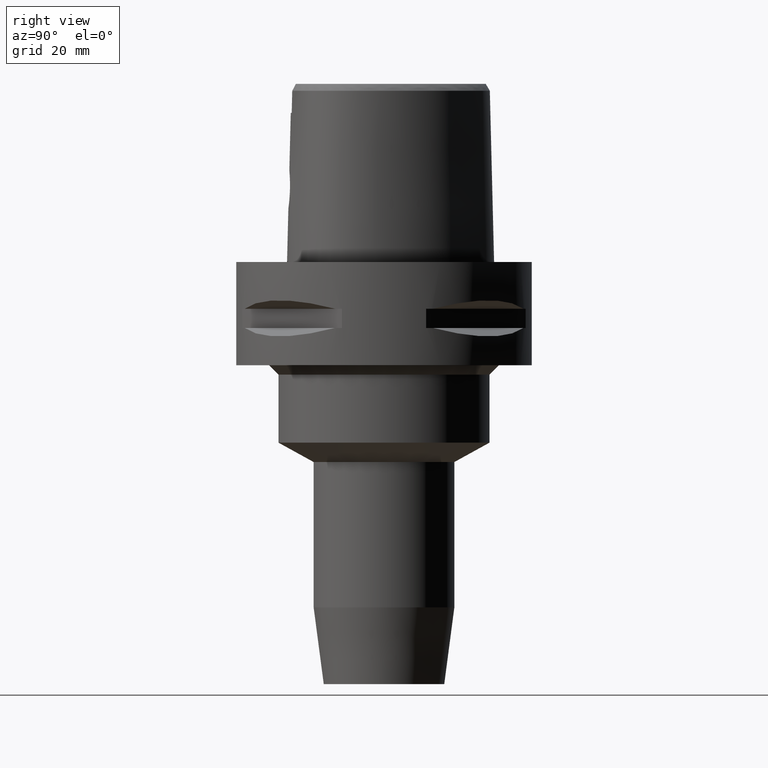
[diagram: clean part render]
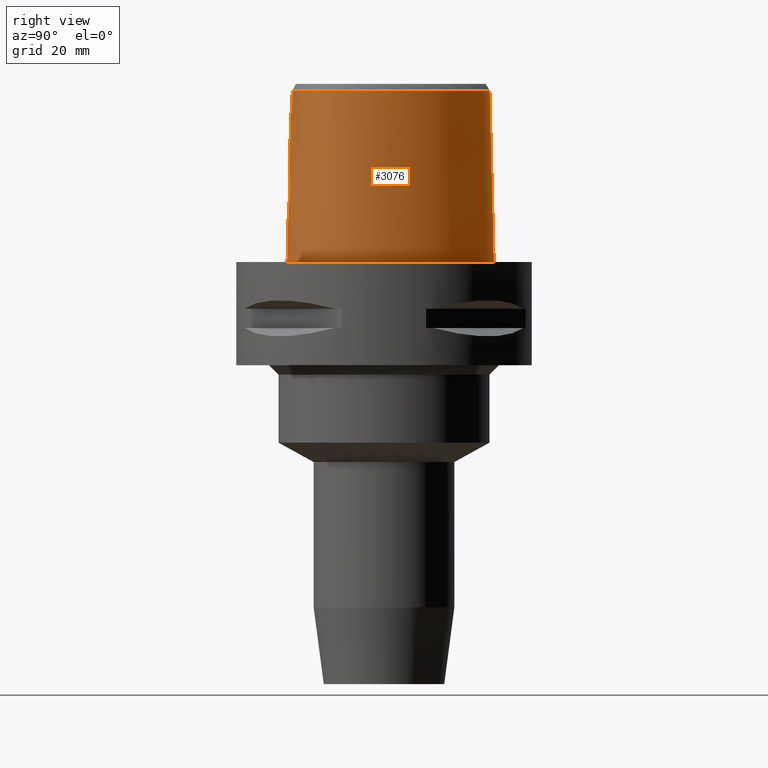
[diagram: same view with one face highlighted and labeled with its STEP entity id]
A machine part, right view. The second image highlights one B-rep face of the part: STEP entity #3076.
In plain terms, the highlighted face is a freeform B-spline surface patch.
Its self-contained STEP definition (entity closure, byte-faithful):
#136=CARTESIAN_POINT('',(3.637738219117E0,-1.956971420299E1,3.652185956444E1));
#146=CARTESIAN_POINT('',(-1.605084153856E-11,2.256201468012E1,
3.652186680744E1));
#147=CARTESIAN_POINT('',(3.781707213585E-1,2.256201468011E1,3.652186680744E1));
#148=CARTESIAN_POINT('',(1.134730585226E0,2.252498071705E1,3.652179120620E1));
#149=CARTESIAN_POINT('',(2.356063939295E0,2.234195482065E1,3.652187787897E1));
#150=CARTESIAN_POINT('',(3.623834858981E0,2.202086391621E1,3.652186376102E1));
#151=CARTESIAN_POINT('',(4.952045757185E0,2.154676064978E1,3.652187402960E1));
#152=CARTESIAN_POINT('',(6.329481850397E0,2.090709828528E1,3.652186529344E1));
#153=CARTESIAN_POINT('',(7.723199685630E0,2.010637444152E1,3.652186854430E1));
#154=CARTESIAN_POINT('',(9.105385253287E0,1.915869409911E1,3.652186637425E1));
#155=CARTESIAN_POINT('',(1.050375335652E1,1.803874747388E1,3.652186471326E1));
#156=CARTESIAN_POINT('',(1.194349139875E1,1.670689193153E1,3.652187410923E1));
#157=CARTESIAN_POINT('',(1.347317864387E1,1.506994472095E1,3.652184803073E1));
#158=CARTESIAN_POINT('',(1.501668659181E1,1.314288457789E1,3.652187441190E1));
#159=CARTESIAN_POINT('',(1.648740919358E1,1.098786647899E1,3.652186151903E1));
#160=CARTESIAN_POINT('',(1.781598819928E1,8.678010767453E0,3.652186754999E1));
#161=CARTESIAN_POINT('',(1.893654303366E1,6.324554453322E0,3.652185257979E1));
#162=CARTESIAN_POINT('',(1.980029771016E1,4.090529039235E0,3.652186292907E1));
#163=CARTESIAN_POINT('',(2.043911920172E1,1.993518421664E0,3.652186534459E1));
#164=CARTESIAN_POINT('',(2.087682742100E1,6.488729142452E-2,3.652187516659E1));
#165=CARTESIAN_POINT('',(2.114826763138E1,-1.722731342534E0,3.652186215059E1));
#166=CARTESIAN_POINT('',(2.127602838199E1,-3.404450108041E0,3.652186790573E1));
#167=CARTESIAN_POINT('',(2.126873709660E1,-5.016094142175E0,3.652187095036E1));
#168=CARTESIAN_POINT('',(2.113114608610E1,-6.519810638381E0,3.652186951853E1));
#169=CARTESIAN_POINT('',(2.087477494423E1,-7.906445118288E0,3.652186475025E1));
#170=CARTESIAN_POINT('',(2.051516421701E1,-9.163969957777E0,3.652187606956E1));
#171=CARTESIAN_POINT('',(2.006346148229E1,-1.030530076995E1,3.652186813654E1));
#172=CARTESIAN_POINT('',(1.952443206762E1,-1.134661648806E1,3.652186808509E1));
#173=CARTESIAN_POINT('',(1.888354313508E1,-1.232283446321E1,3.652184821316E1));
#174=CARTESIAN_POINT('',(1.811807688083E1,-1.326963555217E1,3.652187114369E1));
#175=CARTESIAN_POINT('',(1.720139163244E1,-1.420243467213E1,3.652186714110E1));
#176=CARTESIAN_POINT('',(1.610761708013E1,-1.512115090738E1,3.652186914286E1));
#177=CARTESIAN_POINT('',(1.484401880206E1,-1.599721347267E1,3.652186772627E1));
#178=CARTESIAN_POINT('',(1.343434215592E1,-1.680274531018E1,3.652186438753E1));
#179=CARTESIAN_POINT('',(1.191851958667E1,-1.751648808611E1,3.652186788177E1));
#180=CARTESIAN_POINT('',(1.023240463630E1,-1.816430724128E1,3.652186509690E1));
#181=CARTESIAN_POINT('',(8.316043436837E0,-1.874503310632E1,3.652185929622E1));
#182=CARTESIAN_POINT('',(6.149923362368E0,-1.923360237106E1,3.652187626638E1));
#183=CARTESIAN_POINT('',(4.502877813721E0,-1.947753645443E1,3.652183733818E1));
#184=CARTESIAN_POINT('',(3.637738219117E0,-1.956971420299E1,3.652185956444E1));
#259=DIRECTION('',(-1.665636293796E-9,-2.499140646182E-2,-9.996876660253E-1));
#260=VECTOR('',#259,1.225382733632E1);
#261=CARTESIAN_POINT('',(2.041042029991E-8,-1.988004246002E1,3.180000004972E1));
#262=LINE('',#261,#260);
#280=CARTESIAN_POINT('',(-1.301085599816E-12,-2.038876923348E1,1.145E1));
#285=DIRECTION('',(-7.967746775720E-13,-2.499051295361E-2,-9.996876883619E-1));
#286=VECTOR('',#285,1.145357708542E1);
#287=CARTESIAN_POINT('',(-1.301085599816E-12,-2.038876923348E1,1.145E1));
#288=LINE('',#287,#286);
#308=CARTESIAN_POINT('',(-1.042700578910E-11,-2.0675E1,1.260473207291E-13));
#309=CARTESIAN_POINT('',(9.158423632127E-1,-2.0675E1,1.260473207291E-13));
#310=CARTESIAN_POINT('',(2.716408396290E0,-2.060526959758E1,
-5.849876513417E-14));
#311=CARTESIAN_POINT('',(5.360849041373E0,-2.029895710666E1,
1.567469687592E-14));
#312=CARTESIAN_POINT('',(7.838067988409E0,-1.981278372945E1,0.E0));
#313=CARTESIAN_POINT('',(1.010273943016E1,-1.917806078717E1,0.E0));
#314=CARTESIAN_POINT('',(1.212665494295E1,-1.842788899745E1,0.E0));
#315=CARTESIAN_POINT('',(1.390528348451E1,-1.759281504158E1,0.E0));
#316=CARTESIAN_POINT('',(1.544933729303E1,-1.669720468576E1,0.E0));
#317=CARTESIAN_POINT('',(1.677709919822E1,-1.575929356149E1,0.E0));
#318=CARTESIAN_POINT('',(1.791070168285E1,-1.479064588104E1,0.E0));
#319=CARTESIAN_POINT('',(1.887150357261E1,-1.379790189981E1,0.E0));
#320=CARTESIAN_POINT('',(1.967839891391E1,-1.278369248367E1,0.E0));
#321=CARTESIAN_POINT('',(2.034936091072E1,-1.174528212922E1,0.E0));
#322=CARTESIAN_POINT('',(2.091159017696E1,-1.064674429548E1,0.E0));
#323=CARTESIAN_POINT('',(2.138527596063E1,-9.443658971421E0,0.E0));
#324=CARTESIAN_POINT('',(2.176498967857E1,-8.113513566853E0,0.E0));
#325=CARTESIAN_POINT('',(2.203671366422E1,-6.648064250119E0,0.E0));
#326=CARTESIAN_POINT('',(2.218501817423E1,-5.028396779116E0,0.E0));
#327=CARTESIAN_POINT('',(2.218834029708E1,-3.242572919162E0,0.E0));
#328=CARTESIAN_POINT('',(2.202182546398E1,-1.283710492373E0,0.E0));
#329=CARTESIAN_POINT('',(2.165887442516E1,8.453603315041E-1,0.E0));
#330=CARTESIAN_POINT('',(2.107560380030E1,3.124759078297E0,0.E0));
#331=CARTESIAN_POINT('',(2.025646054374E1,5.515187041283E0,0.E0));
#332=CARTESIAN_POINT('',(1.920073190327E1,7.955493648483E0,0.E0));
#333=CARTESIAN_POINT('',(1.792967904165E1,1.036468909786E1,0.E0));
#334=CARTESIAN_POINT('',(1.647710613861E1,1.266943998868E1,0.E0));
#335=CARTESIAN_POINT('',(1.489108143112E1,1.480166284189E1,0.E0));
#336=CARTESIAN_POINT('',(1.323030500653E1,1.670402183110E1,0.E0));
#337=CARTESIAN_POINT('',(1.154826681381E1,1.834637767515E1,0.E0));
#338=CARTESIAN_POINT('',(9.886689898431E0,1.972279202940E1,0.E0));
#339=CARTESIAN_POINT('',(8.274412956713E0,2.084428429182E1,0.E0));
#340=CARTESIAN_POINT('',(6.727228941433E0,2.173241213456E1,0.E0));
#341=CARTESIAN_POINT('',(5.251300805533E0,2.241232518975E1,0.E0));
#342=CARTESIAN_POINT('',(3.846167454410E0,2.290873349726E1,0.E0));
#343=CARTESIAN_POINT('',(2.506219438544E0,2.324356530458E1,1.531573435204E-14));
#344=CARTESIAN_POINT('',(1.225948313824E0,2.343451067084E1,
-5.715909875705E-14));
#345=CARTESIAN_POINT('',(4.030405167291E-1,2.347499999999E1,
1.231607408651E-13));
#346=CARTESIAN_POINT('',(5.537127096753E-11,2.347499999999E1,
1.231607408651E-13));
#351=CARTESIAN_POINT('',(5.537127096753E-11,2.347499999999E1,
1.231607408651E-13));
#389=CARTESIAN_POINT('',(-1.042700578910E-11,-2.0675E1,1.260473207291E-13));
#1026=CARTESIAN_POINT('',(-1.301085599816E-12,-2.038876923348E1,1.145E1));
#1027=CARTESIAN_POINT('',(3.518410039373E-1,-2.038876923348E1,1.145E1));
#1028=CARTESIAN_POINT('',(1.056002269216E0,-2.037568214282E1,1.154238708989E1));
#1029=CARTESIAN_POINT('',(2.040385422197E0,-2.032131306427E1,1.194792367503E1));
#1030=CARTESIAN_POINT('',(2.891794145477E0,-2.024379318177E1,1.259807706061E1));
#1031=CARTESIAN_POINT('',(3.545775398698E0,-2.016065841224E1,1.344776599253E1));
#1032=CARTESIAN_POINT('',(3.957111572052E0,-2.009016928171E1,1.443938952573E1));
#1033=CARTESIAN_POINT('',(4.096327614963E0,-2.004685475213E1,1.549997055253E1));
#1034=CARTESIAN_POINT('',(3.957577704512E0,-2.003680793094E1,1.655714913641E1));
#1035=CARTESIAN_POINT('',(3.549577819492E0,-2.005726835327E1,1.754497021867E1));
#1036=CARTESIAN_POINT('',(2.899403737141E0,-2.009772754991E1,1.839411373098E1));
#1037=CARTESIAN_POINT('',(2.049555943289E0,-2.014302748467E1,1.904720420744E1));
#1038=CARTESIAN_POINT('',(1.060000729701E0,-2.017769463663E1,1.945708074101E1));
#1039=CARTESIAN_POINT('',(3.531896813644E-1,-2.018628283969E1,1.955E1));
#1040=CARTESIAN_POINT('',(0.E0,-2.018628283969E1,1.955E1));
#1045=CARTESIAN_POINT('',(3.736696120838E0,-1.967778323292E1,3.180000004973E1));
#1046=CARTESIAN_POINT('',(3.726005752326E0,-1.966575923680E1,3.232454431400E1));
#1047=CARTESIAN_POINT('',(3.704089546608E0,-1.964135163374E1,3.337368958251E1));
#1048=CARTESIAN_POINT('',(3.671106187705E0,-1.960533295284E1,3.494764256979E1));
#1049=CARTESIAN_POINT('',(3.649042743234E0,-1.958170238761E1,3.599710209057E1));
#1050=CARTESIAN_POINT('',(3.637738219117E0,-1.956971420299E1,3.652185956444E1));
#1055=DIRECTION('',(1.954987868656E-12,2.499051290954E-2,-9.996876883630E-1));
#1056=VECTOR('',#1055,3.653327657485E1);
#1057=CARTESIAN_POINT('',(-1.605084153856E-11,2.256201468012E1,
3.652186680744E1));
#1058=LINE('',#1057,#1056);
#1062=CARTESIAN_POINT('',(3.736696120838E0,-1.967778323292E1,3.180000004973E1));
#1063=CARTESIAN_POINT('',(3.322953877844E0,-1.972294683117E1,3.180000004973E1));
#1064=CARTESIAN_POINT('',(2.494485023251E0,-1.979770229043E1,3.179999998342E1));
#1065=CARTESIAN_POINT('',(1.247889117313E0,-1.986528006854E1,3.179999998343E1));
#1066=CARTESIAN_POINT('',(4.161790006858E-1,-1.988004246001E1,
3.180000004972E1));
#1067=CARTESIAN_POINT('',(2.041042029991E-8,-1.988004246002E1,
3.180000004972E1));
#1072=CARTESIAN_POINT('',(2.041042029991E-8,-1.988004246002E1,
3.180000004972E1));
#1561=VERTEX_POINT('',#136);
#1562=VERTEX_POINT('',#1045);
#1568=CARTESIAN_POINT('',(-1.605084153856E-11,2.256201468012E1,
3.652186680744E1));
#1569=VERTEX_POINT('',#1568);
#1570=VERTEX_POINT('',#351);
#1571=VERTEX_POINT('',#389);
#1572=VERTEX_POINT('',#1072);
#1573=CARTESIAN_POINT('',(0.E0,-2.018628283969E1,1.955E1));
#1574=VERTEX_POINT('',#1573);
#1575=VERTEX_POINT('',#280);
#2964=CARTESIAN_POINT('',(-6.840631435174E-1,-2.068668115837E1,
-7.304374580477E-1));
#2965=CARTESIAN_POINT('',(-6.779734155116E-1,-2.037023493243E1,
1.193047848145E1));
#2966=CARTESIAN_POINT('',(-6.718836875058E-1,-2.005378870648E1,
2.459139442094E1));
#2967=CARTESIAN_POINT('',(-6.657939595001E-1,-1.973734248054E1,
3.725231036043E1));
#2968=CARTESIAN_POINT('',(-4.561077449004E-1,-2.069106755066E1,
-7.304374580477E-1));
#2969=CARTESIAN_POINT('',(-4.520500682693E-1,-2.037458456928E1,
1.193047848145E1));
#2970=CARTESIAN_POINT('',(-4.479923916383E-1,-2.005810158790E1,
2.459139442094E1));
#2971=CARTESIAN_POINT('',(-4.439347150072E-1,-1.974161860652E1,
3.725231036043E1));
#2972=CARTESIAN_POINT('',(1.886855602977E0,-2.071358918985E1,
-7.304374580477E-1));
#2973=CARTESIAN_POINT('',(1.870063867118E0,-2.039691460802E1,1.193047848145E1));
#2974=CARTESIAN_POINT('',(1.853272131259E0,-2.008024002619E1,2.459139442094E1));
#2975=CARTESIAN_POINT('',(1.836480395400E0,-1.976356544435E1,3.725231036043E1));
#2976=CARTESIAN_POINT('',(6.344715575713E0,-2.031619964419E1,
-7.304374580477E-1));
#2977=CARTESIAN_POINT('',(6.288476596363E0,-2.000290581168E1,1.193047848145E1));
#2978=CARTESIAN_POINT('',(6.232237617012E0,-1.968961197917E1,2.459139442094E1));
#2979=CARTESIAN_POINT('',(6.175998637662E0,-1.937631814666E1,3.725231036043E1));
#2980=CARTESIAN_POINT('',(1.123887130062E1,-1.891049775491E1,
-7.304374580477E-1));
#2981=CARTESIAN_POINT('',(1.113012658925E1,-1.861140125312E1,1.193047848145E1));
#2982=CARTESIAN_POINT('',(1.102138187788E1,-1.831230475133E1,2.459139442094E1));
#2983=CARTESIAN_POINT('',(1.091263716651E1,-1.801320824954E1,3.725231036043E1));
#2984=CARTESIAN_POINT('',(1.468244496844E1,-1.723001772547E1,
-7.304374580477E-1));
#2985=CARTESIAN_POINT('',(1.452531268149E1,-1.695413756735E1,1.193047848145E1));
#2986=CARTESIAN_POINT('',(1.436818039453E1,-1.667825740923E1,2.459139442094E1));
#2987=CARTESIAN_POINT('',(1.421104810757E1,-1.640237725110E1,3.725231036043E1));
#2988=CARTESIAN_POINT('',(1.697022730766E1,-1.569280482678E1,
-7.304374580477E-1));
#2989=CARTESIAN_POINT('',(1.677374389109E1,-1.544292480851E1,1.193047848145E1));
#2990=CARTESIAN_POINT('',(1.657726047452E1,-1.519304479024E1,2.459139442094E1));
#2991=CARTESIAN_POINT('',(1.638077705795E1,-1.494316477197E1,3.725231036043E1));
#2992=CARTESIAN_POINT('',(1.858171406183E1,-1.418198046168E1,
-7.304374580477E-1));
#2993=CARTESIAN_POINT('',(1.835112161461E1,-1.396357042790E1,1.193047848145E1));
#2994=CARTESIAN_POINT('',(1.812052916738E1,-1.374516039413E1,2.459139442094E1));
#2995=CARTESIAN_POINT('',(1.788993672015E1,-1.352675036035E1,3.725231036043E1));
#2996=CARTESIAN_POINT('',(1.966427014178E1,-1.283600704348E1,
-7.304374580477E-1));
#2997=CARTESIAN_POINT('',(1.940779776734E1,-1.264961933163E1,1.193047848145E1));
#2998=CARTESIAN_POINT('',(1.915132539291E1,-1.246323161978E1,2.459139442094E1));
#2999=CARTESIAN_POINT('',(1.889485301847E1,-1.227684390793E1,3.725231036043E1));
#3000=CARTESIAN_POINT('',(2.036546124032E1,-1.175800452930E1,
-7.304374580477E-1));
#3001=CARTESIAN_POINT('',(2.009084482457E1,-1.159945466714E1,1.193047848145E1));
#3002=CARTESIAN_POINT('',(1.981622840881E1,-1.144090480498E1,2.459139442094E1));
#3003=CARTESIAN_POINT('',(1.954161199305E1,-1.128235494282E1,3.725231036043E1));
#3004=CARTESIAN_POINT('',(2.094844325360E1,-1.061175396773E1,
-7.304374580477E-1));
#3005=CARTESIAN_POINT('',(2.065879057465E1,-1.048283623541E1,1.193047848145E1));
#3006=CARTESIAN_POINT('',(2.036913789571E1,-1.035391850308E1,2.459139442094E1));
#3007=CARTESIAN_POINT('',(2.007948521677E1,-1.022500077076E1,3.725231036043E1));
#3008=CARTESIAN_POINT('',(2.157281238730E1,-9.001246193603E0,
-7.304374580477E-1));
#3009=CARTESIAN_POINT('',(2.126836751573E1,-8.910752275319E0,1.193047848145E1));
#3010=CARTESIAN_POINT('',(2.096392264415E1,-8.820258357035E0,2.459139442094E1));
#3011=CARTESIAN_POINT('',(2.065947777257E1,-8.729764438752E0,3.725231036043E1));
#3012=CARTESIAN_POINT('',(2.207548128561E1,-6.850245534694E0,
-7.304374580477E-1));
#3013=CARTESIAN_POINT('',(2.176083721756E1,-6.805026058331E0,1.193047848145E1));
#3014=CARTESIAN_POINT('',(2.144619314951E1,-6.759806581969E0,2.459139442094E1));
#3015=CARTESIAN_POINT('',(2.113154908145E1,-6.714587105607E0,3.725231036043E1));
#3016=CARTESIAN_POINT('',(2.226285555983E1,-4.100361500081E0,
-7.304374580477E-1));
#3017=CARTESIAN_POINT('',(2.194536988431E1,-4.102220498670E0,1.193047848145E1));
#3018=CARTESIAN_POINT('',(2.162788420880E1,-4.104079497259E0,2.459139442094E1));
#3019=CARTESIAN_POINT('',(2.131039853328E1,-4.105938495848E0,3.725231036043E1));
#3020=CARTESIAN_POINT('',(2.199640701046E1,-2.778990171952E-1,
-7.304374580477E-1));
#3021=CARTESIAN_POINT('',(2.168301111210E1,-3.332743858124E-1,
1.193047848145E1));
#3022=CARTESIAN_POINT('',(2.136961521373E1,-3.886497544295E-1,
2.459139442094E1));
#3023=CARTESIAN_POINT('',(2.105621931536E1,-4.440251230467E-1,
3.725231036043E1));
#3024=CARTESIAN_POINT('',(2.076670354390E1,4.663413652106E0,
-7.304374580477E-1));
#3025=CARTESIAN_POINT('',(2.046725053548E1,4.555493682263E0,1.193047848145E1));
#3026=CARTESIAN_POINT('',(2.016779752705E1,4.447573712420E0,2.459139442094E1));
#3027=CARTESIAN_POINT('',(1.986834451863E1,4.339653742578E0,3.725231036043E1));
#3028=CARTESIAN_POINT('',(1.808416037836E1,1.044089486935E1,
-7.304374580477E-1));
#3029=CARTESIAN_POINT('',(1.780867316483E1,1.028184213398E1,1.193047848145E1));
#3030=CARTESIAN_POINT('',(1.753318595131E1,1.012278939860E1,2.459139442094E1));
#3031=CARTESIAN_POINT('',(1.725769873778E1,9.963736663223E0,3.725231036043E1));
#3032=CARTESIAN_POINT('',(1.442198651577E1,1.565278599894E1,
-7.304374580477E-1));
#3033=CARTESIAN_POINT('',(1.417879766189E1,1.544741201746E1,1.193047848145E1));
#3034=CARTESIAN_POINT('',(1.393560880801E1,1.524203803598E1,2.459139442094E1));
#3035=CARTESIAN_POINT('',(1.369241995413E1,1.503666405450E1,3.725231036043E1));
#3036=CARTESIAN_POINT('',(1.075753573457E1,1.918839675326E1,
-7.304374580477E-1));
#3037=CARTESIAN_POINT('',(1.055288411890E1,1.894467594682E1,1.193047848145E1));
#3038=CARTESIAN_POINT('',(1.034823250323E1,1.870095514038E1,2.459139442094E1));
#3039=CARTESIAN_POINT('',(1.014358088757E1,1.845723433394E1,3.725231036043E1));
#3040=CARTESIAN_POINT('',(7.580410837350E0,2.133037925811E1,
-7.304374580477E-1));
#3041=CARTESIAN_POINT('',(7.420053185361E0,2.105635753421E1,1.193047848145E1));
#3042=CARTESIAN_POINT('',(7.259695533371E0,2.078233581032E1,2.459139442094E1));
#3043=CARTESIAN_POINT('',(7.099337881382E0,2.050831408642E1,3.725231036043E1));
#3044=CARTESIAN_POINT('',(5.105252914037E0,2.254305023723E1,
-7.304374580477E-1));
#3045=CARTESIAN_POINT('',(4.987110703644E0,2.224795289609E1,1.193047848145E1));
#3046=CARTESIAN_POINT('',(4.868968493251E0,2.195285555495E1,2.459139442094E1));
#3047=CARTESIAN_POINT('',(4.750826282858E0,2.165775821381E1,3.725231036043E1));
#3048=CARTESIAN_POINT('',(2.568271204640E0,2.331126237845E1,
-7.304374580477E-1));
#3049=CARTESIAN_POINT('',(2.503210924793E0,2.299958948529E1,1.193047848145E1));
#3050=CARTESIAN_POINT('',(2.438150644946E0,2.268791659212E1,2.459139442094E1));
#3051=CARTESIAN_POINT('',(2.373090365099E0,2.237624369896E1,3.725231036043E1));
#3052=CARTESIAN_POINT('',(6.155340737530E-1,2.351883497199E1,
-7.304374580477E-1));
#3053=CARTESIAN_POINT('',(5.990982063250E-1,2.320165478035E1,1.193047848145E1));
#3054=CARTESIAN_POINT('',(5.826623388969E-1,2.288447458871E1,2.459139442094E1));
#3055=CARTESIAN_POINT('',(5.662264714689E-1,2.256729439707E1,3.725231036043E1));
#3056=CARTESIAN_POINT('',(-4.812391251886E-1,2.348607175733E1,
-7.304374580477E-1));
#3057=CARTESIAN_POINT('',(-4.685452003925E-1,2.316976083653E1,
1.193047848145E1));
#3058=CARTESIAN_POINT('',(-4.558512755964E-1,2.285344991573E1,
2.459139442094E1));
#3059=CARTESIAN_POINT('',(-4.431573508003E-1,2.253713899493E1,
3.725231036043E1));
#3060=CARTESIAN_POINT('',(-7.217521644356E-1,2.347150798144E1,
-7.304374580477E-1));
#3061=CARTESIAN_POINT('',(-7.025952918391E-1,2.315559754995E1,
1.193047848145E1));
#3062=CARTESIAN_POINT('',(-6.834384192425E-1,2.283968711847E1,
2.459139442094E1));
#3063=CARTESIAN_POINT('',(-6.642815466460E-1,2.252377668699E1,
3.725231036043E1));
#3064=B_SPLINE_SURFACE_WITH_KNOTS('',3,3,((#2964,#2965,#2966,#2967),(#2968,
#2969,#2970,#2971),(#2972,#2973,#2974,#2975),(#2976,#2977,#2978,#2979),(#2980,
#2981,#2982,#2983),(#2984,#2985,#2986,#2987),(#2988,#2989,#2990,#2991),(#2992,
#2993,#2994,#2995),(#2996,#2997,#2998,#2999),(#3000,#3001,#3002,#3003),(#3004,
#3005,#3006,#3007),(#3008,#3009,#3010,#3011),(#3012,#3013,#3014,#3015),(#3016,
#3017,#3018,#3019),(#3020,#3021,#3022,#3023),(#3024,#3025,#3026,#3027),(#3028,
#3029,#3030,#3031),(#3032,#3033,#3034,#3035),(#3036,#3037,#3038,#3039),(#3040,
#3041,#3042,#3043),(#3044,#3045,#3046,#3047),(#3048,#3049,#3050,#3051),(#3052,
#3053,#3054,#3055),(#3056,#3057,#3058,#3059),(#3060,#3061,#3062,#3063)),
.UNSPECIFIED.,.F.,.F.,.F.,(4,1,1,1,1,1,1,1,1,1,1,1,1,1,1,1,1,1,1,1,1,1,4),(4,4),
(-8.985960173582E-3,0.E0,8.333333333343E-2,1.666666666668E-1,2.083333333333E-1,
2.5E-1,2.916666666667E-1,3.125E-1,3.333333333333E-1,3.541666666667E-1,3.75E-1,
4.166666666666E-1,4.583333333332E-1,4.999999999999E-1,5.833333333332E-1,
6.666666666665E-1,7.499999999998E-1,8.333333333330E-1,8.749999999997E-1,
9.166666666664E-1,9.583333333330E-1,1.E0,1.011710456763E0),(7.035931674088E-9,
9.999996411675E-1),.UNSPECIFIED.);
#3065=ORIENTED_EDGE('',*,*,#2413,.F.);
#3066=ORIENTED_EDGE('',*,*,#2397,.F.);
#3067=ORIENTED_EDGE('',*,*,#2956,.T.);
#3068=ORIENTED_EDGE('',*,*,#2393,.F.);
#3070=ORIENTED_EDGE('',*,*,#3069,.F.);
#3071=ORIENTED_EDGE('',*,*,#1756,.T.);
#3072=ORIENTED_EDGE('',*,*,#2022,.F.);
#3073=ORIENTED_EDGE('',*,*,#2387,.T.);
#3074=EDGE_LOOP('',(#3065,#3066,#3067,#3068,#3070,#3071,#3072,#3073));
#3075=FACE_OUTER_BOUND('',#3074,.F.);
#185=B_SPLINE_CURVE_WITH_KNOTS('',3,(#146,#147,#148,#149,#150,#151,#152,#153,
#154,#155,#156,#157,#158,#159,#160,#161,#162,#163,#164,#165,#166,#167,#168,#169,
#170,#171,#172,#173,#174,#175,#176,#177,#178,#179,#180,#181,#182,#183,#184),
.UNSPECIFIED.,.F.,.F.,(4,1,1,1,1,1,1,1,1,1,1,1,1,1,1,1,1,1,1,1,1,1,1,1,1,1,1,1,
1,1,1,1,1,1,1,1,4),(0.E0,2.777777777778E-2,5.555555555556E-2,8.333333333333E-2,
1.111111111111E-1,1.388888888889E-1,1.666666666667E-1,1.944444444444E-1,
2.222222222222E-1,2.5E-1,2.777777777778E-1,3.055555555556E-1,3.333333333333E-1,
3.611111111111E-1,3.888888888889E-1,4.166666666667E-1,4.444444444444E-1,
4.722222222222E-1,5.E-1,5.277777777778E-1,5.555555555556E-1,5.833333333333E-1,
6.111111111111E-1,6.388888888889E-1,6.666666666667E-1,6.944444444444E-1,
7.222222222222E-1,7.5E-1,7.777777777778E-1,8.055555555556E-1,8.333333333333E-1,
8.611111111111E-1,8.888888888889E-1,9.166666666667E-1,9.444444444444E-1,
9.722222222222E-1,1.E0),.UNSPECIFIED.);
#347=B_SPLINE_CURVE_WITH_KNOTS('',3,(#308,#309,#310,#311,#312,#313,#314,#315,
#316,#317,#318,#319,#320,#321,#322,#323,#324,#325,#326,#327,#328,#329,#330,#331,
#332,#333,#334,#335,#336,#337,#338,#339,#340,#341,#342,#343,#344,#345,#346),
.UNSPECIFIED.,.F.,.F.,(4,1,1,1,1,1,1,1,1,1,1,1,1,1,1,1,1,1,1,1,1,1,1,1,1,1,1,1,
1,1,1,1,1,1,1,1,4),(0.E0,2.777777777778E-2,5.555555555556E-2,8.333333333333E-2,
1.111111111111E-1,1.388888888889E-1,1.666666666667E-1,1.944444444444E-1,
2.222222222222E-1,2.5E-1,2.777777777778E-1,3.055555555556E-1,3.333333333333E-1,
3.611111111111E-1,3.888888888889E-1,4.166666666667E-1,4.444444444444E-1,
4.722222222222E-1,5.E-1,5.277777777778E-1,5.555555555556E-1,5.833333333333E-1,
6.111111111111E-1,6.388888888889E-1,6.666666666667E-1,6.944444444444E-1,
7.222222222222E-1,7.5E-1,7.777777777778E-1,8.055555555556E-1,8.333333333333E-1,
8.611111111111E-1,8.888888888889E-1,9.166666666667E-1,9.444444444444E-1,
9.722222222222E-1,1.E0),.UNSPECIFIED.);
#1041=B_SPLINE_CURVE_WITH_KNOTS('',3,(#1026,#1027,#1028,#1029,#1030,#1031,#1032,
#1033,#1034,#1035,#1036,#1037,#1038,#1039,#1040),.UNSPECIFIED.,.F.,.F.,(4,1,1,1,
1,1,1,1,1,1,1,1,4),(0.E0,8.333333333333E-2,1.666666666667E-1,2.5E-1,
3.333333333333E-1,4.166666666667E-1,5.E-1,5.833333333333E-1,6.666666666667E-1,
7.5E-1,8.333333333333E-1,9.166666666667E-1,1.E0),.UNSPECIFIED.);
#1051=B_SPLINE_CURVE_WITH_KNOTS('',3,(#1045,#1046,#1047,#1048,#1049,#1050),
.UNSPECIFIED.,.F.,.F.,(4,1,1,4),(0.E0,3.333333333333E-1,6.666666666667E-1,1.E0),
.UNSPECIFIED.);
#1068=B_SPLINE_CURVE_WITH_KNOTS('',3,(#1062,#1063,#1064,#1065,#1066,#1067),
.UNSPECIFIED.,.F.,.F.,(4,1,1,4),(0.E0,3.333333333333E-1,6.666666666667E-1,1.E0),
.UNSPECIFIED.);
#1756=EDGE_CURVE('',#1562,#1561,#1051,.T.);
#2022=EDGE_CURVE('',#1569,#1561,#185,.T.);
#2387=EDGE_CURVE('',#1569,#1570,#1058,.T.);
#2393=EDGE_CURVE('',#1572,#1574,#262,.T.);
#2397=EDGE_CURVE('',#1575,#1571,#288,.T.);
#2413=EDGE_CURVE('',#1571,#1570,#347,.T.);
#2956=EDGE_CURVE('',#1575,#1574,#1041,.T.);
#3069=EDGE_CURVE('',#1562,#1572,#1068,.T.);
#3076=ADVANCED_FACE('',(#3075),#3064,.T.);